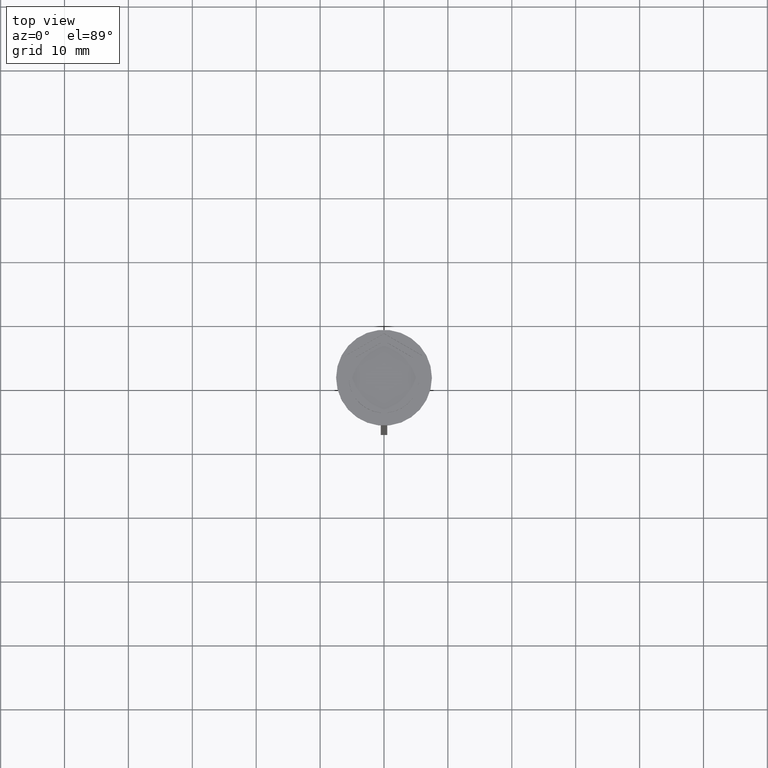
[diagram: clean part render]
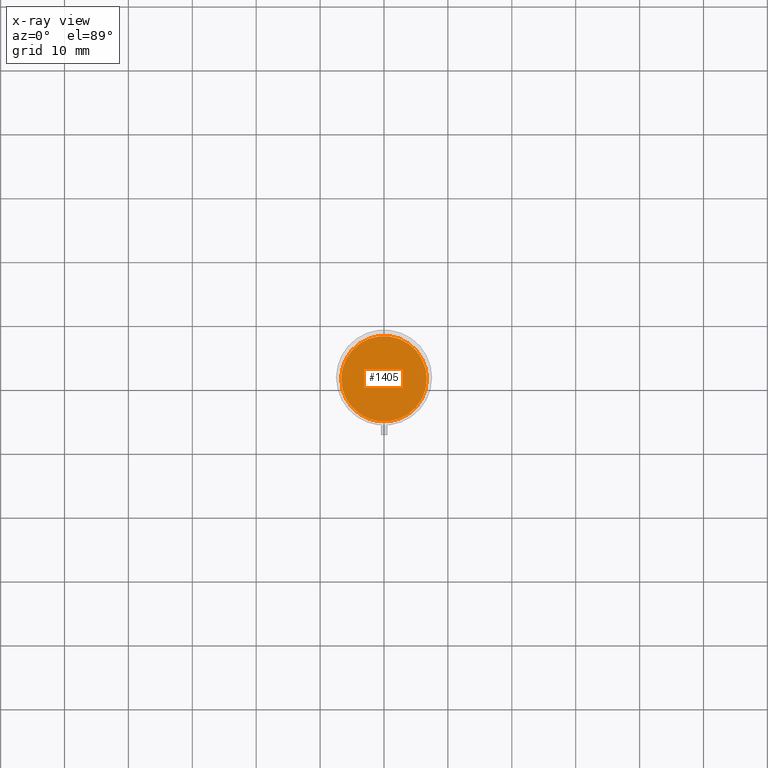
[diagram: x-ray — body ghosted, one internal face saturated and labeled with its STEP entity id]
A machine part, top view, then the same camera in x-ray: the body is ghosted and one INTERNAL B-rep face — a face not visible from any outside direction — is saturated and labeled: STEP entity #1405.
In plain terms, the highlighted planar face has unit normal (0, 0, -1).
Its self-contained STEP definition (entity closure, byte-faithful):
#36 = EDGE_CURVE ( 'NONE', #1341, #2261, #43, .T. ) ;
#43 = CIRCLE ( 'NONE', #1871, 6.700000000000001066 ) ;
#172 = AXIS2_PLACEMENT_3D ( 'NONE', #297, #1450, #2221 ) ;
#218 = CARTESIAN_POINT ( 'NONE',  ( 0.000000000000000000, 0.000000000000000000, -10.50000000000000178 ) ) ;
#229 = DIRECTION ( 'NONE',  ( -0.000000000000000000, -0.000000000000000000, 1.000000000000000000 ) ) ;
#297 = CARTESIAN_POINT ( 'NONE',  ( 0.000000000000000000, 0.000000000000000000, -10.50000000000000178 ) ) ;
#653 = DIRECTION ( 'NONE',  ( -0.000000000000000000, -0.000000000000000000, 1.000000000000000000 ) ) ;
#764 = EDGE_LOOP ( 'NONE', ( #2287, #2255 ) ) ;
#847 = DIRECTION ( 'NONE',  ( -1.000000000000000000, 0.000000000000000000, 0.000000000000000000 ) ) ;
#993 = DIRECTION ( 'NONE',  ( -1.000000000000000000, 0.000000000000000000, 0.000000000000000000 ) ) ;
#1143 = CARTESIAN_POINT ( 'NONE',  ( -6.700000000000001066, 0.000000000000000000, -10.50000000000000178 ) ) ;
#1229 = EDGE_CURVE ( 'NONE', #2261, #1341, #1529, .T. ) ;
#1242 = PLANE ( 'NONE',  #172 ) ;
#1341 = VERTEX_POINT ( 'NONE', #1838 ) ;
#1405 = ADVANCED_FACE ( 'NONE', ( #1438 ), #1242, .F. ) ;
#1414 = AXIS2_PLACEMENT_3D ( 'NONE', #218, #229, #993 ) ;
#1438 = FACE_OUTER_BOUND ( 'NONE', #764, .T. ) ;
#1450 = DIRECTION ( 'NONE',  ( 0.000000000000000000, 0.000000000000000000, -1.000000000000000000 ) ) ;
#1529 = CIRCLE ( 'NONE', #1414, 6.700000000000001066 ) ;
#1588 = CARTESIAN_POINT ( 'NONE',  ( 0.000000000000000000, 0.000000000000000000, -10.50000000000000178 ) ) ;
#1838 = CARTESIAN_POINT ( 'NONE',  ( 6.700000000000001066, 8.388830574159370862E-16, -10.50000000000000178 ) ) ;
#1871 = AXIS2_PLACEMENT_3D ( 'NONE', #1588, #653, #847 ) ;
#2221 = DIRECTION ( 'NONE',  ( -1.000000000000000000, 0.000000000000000000, -0.000000000000000000 ) ) ;
#2255 = ORIENTED_EDGE ( 'NONE', *, *, #36, .T. ) ;
#2261 = VERTEX_POINT ( 'NONE', #1143 ) ;
#2287 = ORIENTED_EDGE ( 'NONE', *, *, #1229, .T. ) ;